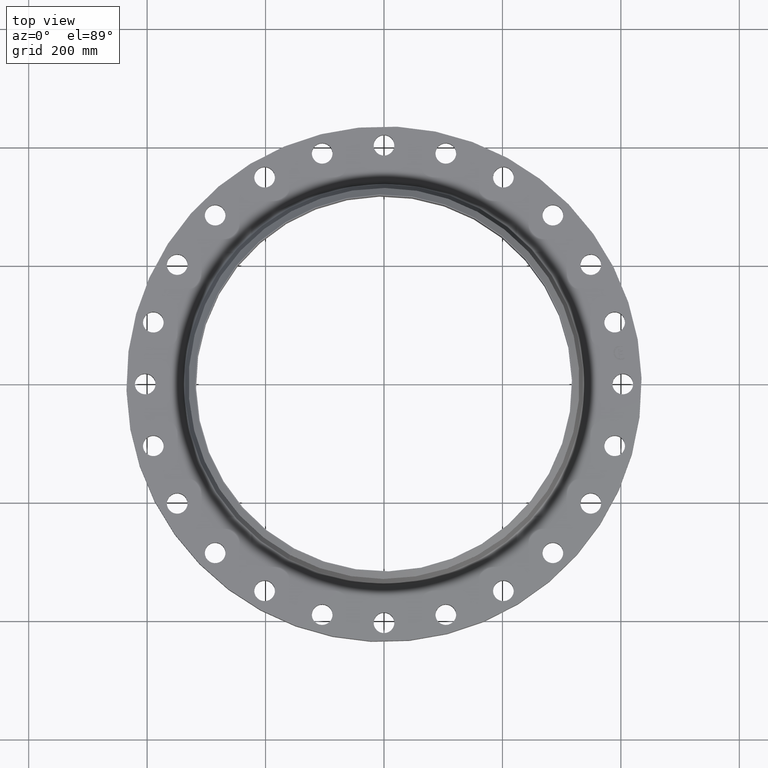
[diagram: clean part render]
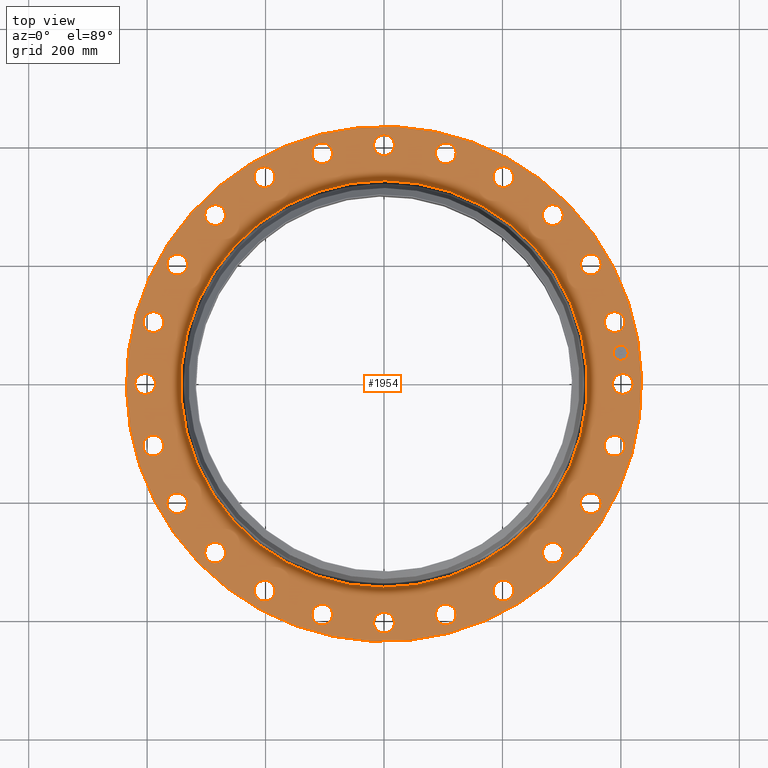
[diagram: same view with one face highlighted and labeled with its STEP entity id]
A machine part, top view. The second image highlights one B-rep face of the part: STEP entity #1954.
In plain terms, the highlighted planar face has unit normal (0, 0, -1).
Its self-contained STEP definition (entity closure, byte-faithful):
#65=AXIS2_PLACEMENT_3D('Circle Axis2P3D',#63,#64,$) ;
#82=AXIS2_PLACEMENT_3D('Circle Axis2P3D',#80,#81,$) ;
#115=AXIS2_PLACEMENT_3D('Circle Axis2P3D',#113,#114,$) ;
#139=AXIS2_PLACEMENT_3D('Circle Axis2P3D',#137,#138,$) ;
#156=AXIS2_PLACEMENT_3D('Circle Axis2P3D',#154,#155,$) ;
#191=AXIS2_PLACEMENT_3D('Circle Axis2P3D',#189,#190,$) ;
#859=AXIS2_PLACEMENT_3D('Circle Axis2P3D',#857,#858,$) ;
#871=AXIS2_PLACEMENT_3D('Circle Axis2P3D',#869,#870,$) ;
#902=AXIS2_PLACEMENT_3D('Circle Axis2P3D',#900,#901,$) ;
#914=AXIS2_PLACEMENT_3D('Circle Axis2P3D',#912,#913,$) ;
#945=AXIS2_PLACEMENT_3D('Circle Axis2P3D',#943,#944,$) ;
#957=AXIS2_PLACEMENT_3D('Circle Axis2P3D',#955,#956,$) ;
#988=AXIS2_PLACEMENT_3D('Circle Axis2P3D',#986,#987,$) ;
#1000=AXIS2_PLACEMENT_3D('Circle Axis2P3D',#998,#999,$) ;
#1031=AXIS2_PLACEMENT_3D('Circle Axis2P3D',#1029,#1030,$) ;
#1043=AXIS2_PLACEMENT_3D('Circle Axis2P3D',#1041,#1042,$) ;
#1074=AXIS2_PLACEMENT_3D('Circle Axis2P3D',#1072,#1073,$) ;
#1086=AXIS2_PLACEMENT_3D('Circle Axis2P3D',#1084,#1085,$) ;
#1117=AXIS2_PLACEMENT_3D('Circle Axis2P3D',#1115,#1116,$) ;
#1129=AXIS2_PLACEMENT_3D('Circle Axis2P3D',#1127,#1128,$) ;
#1160=AXIS2_PLACEMENT_3D('Circle Axis2P3D',#1158,#1159,$) ;
#1172=AXIS2_PLACEMENT_3D('Circle Axis2P3D',#1170,#1171,$) ;
#1203=AXIS2_PLACEMENT_3D('Circle Axis2P3D',#1201,#1202,$) ;
#1215=AXIS2_PLACEMENT_3D('Circle Axis2P3D',#1213,#1214,$) ;
#1246=AXIS2_PLACEMENT_3D('Circle Axis2P3D',#1244,#1245,$) ;
#1258=AXIS2_PLACEMENT_3D('Circle Axis2P3D',#1256,#1257,$) ;
#1289=AXIS2_PLACEMENT_3D('Circle Axis2P3D',#1287,#1288,$) ;
#1301=AXIS2_PLACEMENT_3D('Circle Axis2P3D',#1299,#1300,$) ;
#1332=AXIS2_PLACEMENT_3D('Circle Axis2P3D',#1330,#1331,$) ;
#1344=AXIS2_PLACEMENT_3D('Circle Axis2P3D',#1342,#1343,$) ;
#1375=AXIS2_PLACEMENT_3D('Circle Axis2P3D',#1373,#1374,$) ;
#1387=AXIS2_PLACEMENT_3D('Circle Axis2P3D',#1385,#1386,$) ;
#1418=AXIS2_PLACEMENT_3D('Circle Axis2P3D',#1416,#1417,$) ;
#1430=AXIS2_PLACEMENT_3D('Circle Axis2P3D',#1428,#1429,$) ;
#1461=AXIS2_PLACEMENT_3D('Circle Axis2P3D',#1459,#1460,$) ;
#1473=AXIS2_PLACEMENT_3D('Circle Axis2P3D',#1471,#1472,$) ;
#1504=AXIS2_PLACEMENT_3D('Circle Axis2P3D',#1502,#1503,$) ;
#1516=AXIS2_PLACEMENT_3D('Circle Axis2P3D',#1514,#1515,$) ;
#1547=AXIS2_PLACEMENT_3D('Circle Axis2P3D',#1545,#1546,$) ;
#1559=AXIS2_PLACEMENT_3D('Circle Axis2P3D',#1557,#1558,$) ;
#1590=AXIS2_PLACEMENT_3D('Circle Axis2P3D',#1588,#1589,$) ;
#1602=AXIS2_PLACEMENT_3D('Circle Axis2P3D',#1600,#1601,$) ;
#1633=AXIS2_PLACEMENT_3D('Circle Axis2P3D',#1631,#1632,$) ;
#1645=AXIS2_PLACEMENT_3D('Circle Axis2P3D',#1643,#1644,$) ;
#1676=AXIS2_PLACEMENT_3D('Circle Axis2P3D',#1674,#1675,$) ;
#1688=AXIS2_PLACEMENT_3D('Circle Axis2P3D',#1686,#1687,$) ;
#1719=AXIS2_PLACEMENT_3D('Circle Axis2P3D',#1717,#1718,$) ;
#1731=AXIS2_PLACEMENT_3D('Circle Axis2P3D',#1729,#1730,$) ;
#1762=AXIS2_PLACEMENT_3D('Circle Axis2P3D',#1760,#1761,$) ;
#1774=AXIS2_PLACEMENT_3D('Circle Axis2P3D',#1772,#1773,$) ;
#1805=AXIS2_PLACEMENT_3D('Circle Axis2P3D',#1803,#1804,$) ;
#1817=AXIS2_PLACEMENT_3D('Circle Axis2P3D',#1815,#1816,$) ;
#1830=AXIS2_PLACEMENT_3D('Plane Axis2P3D',#1827,#1828,#1829) ;
#1938=AXIS2_PLACEMENT_3D('Circle Axis2P3D',#1936,#1937,$) ;
#1947=AXIS2_PLACEMENT_3D('Circle Axis2P3D',#1945,#1946,$) ;
#46=CARTESIAN_POINT('Vertex',(15.2694680324,0.330803621638,2.63000000001)) ;
#60=CARTESIAN_POINT('Vertex',(16.4805319678,-0.330803621638,2.63000000001)) ;
#63=CARTESIAN_POINT('Axis2P3D Location',(15.8750000001,0.,2.63000000001)) ;
#80=CARTESIAN_POINT('Axis2P3D Location',(15.8750000001,0.,2.63000000001)) ;
#110=CARTESIAN_POINT('Vertex',(-8.21016234863,-15.0286013724,2.63000000001)) ;
#113=CARTESIAN_POINT('Axis2P3D Location',(0.,0.,2.63000000001)) ;
#117=CARTESIAN_POINT('Vertex',(8.21016234863,15.0286013724,2.63000000001)) ;
#137=CARTESIAN_POINT('Axis2P3D Location',(0.,0.,2.63000000001)) ;
#154=CARTESIAN_POINT('Axis2P3D Location',(0.,0.,2.63000000001)) ;
#158=CARTESIAN_POINT('Vertex',(6.47861463462,11.8590245424,2.63000000001)) ;
#160=CARTESIAN_POINT('Vertex',(-6.47861463462,-11.8590245424,2.63000000001)) ;
#189=CARTESIAN_POINT('Axis2P3D Location',(0.,0.,2.63000000001)) ;
#847=CARTESIAN_POINT('Vertex',(-14.8347918036,3.63249737379,2.63000000001)) ;
#854=CARTESIAN_POINT('Vertex',(-15.8333531812,4.58500730825,2.63000000001)) ;
#857=CARTESIAN_POINT('Axis2P3D Location',(-15.3340724924,4.10875234102,2.63000000001)) ;
#869=CARTESIAN_POINT('Axis2P3D Location',(-15.3340724924,4.10875234102,2.63000000001)) ;
#890=CARTESIAN_POINT('Vertex',(13.3891490291,-7.34824967618,2.63000000001)) ;
#897=CARTESIAN_POINT('Vertex',(14.1071575412,-8.52675032389,2.63000000001)) ;
#900=CARTESIAN_POINT('Axis2P3D Location',(13.7481532851,-7.93750000003,2.63000000001)) ;
#912=CARTESIAN_POINT('Axis2P3D Location',(13.7481532851,-7.93750000003,2.63000000001)) ;
#933=CARTESIAN_POINT('Vertex',(-13.3891490291,7.34824967618,2.63000000001)) ;
#940=CARTESIAN_POINT('Vertex',(-14.1071575412,8.52675032389,2.63000000001)) ;
#943=CARTESIAN_POINT('Axis2P3D Location',(-13.7481532851,7.93750000003,2.63000000001)) ;
#955=CARTESIAN_POINT('Axis2P3D Location',(-13.7481532851,7.93750000003,2.63000000001)) ;
#976=CARTESIAN_POINT('Vertex',(11.0310578749,-10.5632309067,2.63000000001)) ;
#983=CARTESIAN_POINT('Vertex',(11.4195824279,-11.8874093961,2.63000000001)) ;
#986=CARTESIAN_POINT('Axis2P3D Location',(11.2253201514,-11.2253201514,2.63000000001)) ;
#998=CARTESIAN_POINT('Axis2P3D Location',(11.2253201514,-11.2253201514,2.63000000001)) ;
#1019=CARTESIAN_POINT('Vertex',(-11.0310578749,10.5632309067,2.63000000001)) ;
#1026=CARTESIAN_POINT('Vertex',(-11.4195824279,11.8874093961,2.63000000001)) ;
#1029=CARTESIAN_POINT('Axis2P3D Location',(-11.2253201514,11.2253201514,2.63000000001)) ;
#1041=CARTESIAN_POINT('Axis2P3D Location',(-11.2253201514,11.2253201514,2.63000000001)) ;
#1062=CARTESIAN_POINT('Vertex',(7.92121835618,-13.0583454075,2.63000000001)) ;
#1069=CARTESIAN_POINT('Vertex',(7.95378164388,-14.4379611628,2.63000000001)) ;
#1072=CARTESIAN_POINT('Axis2P3D Location',(7.93750000003,-13.7481532851,2.63000000001)) ;
#1084=CARTESIAN_POINT('Axis2P3D Location',(7.93750000003,-13.7481532851,2.63000000001)) ;
#1105=CARTESIAN_POINT('Vertex',(-7.92121835618,13.0583454075,2.63000000001)) ;
#1112=CARTESIAN_POINT('Vertex',(-7.95378164388,14.4379611628,2.63000000001)) ;
#1115=CARTESIAN_POINT('Axis2P3D Location',(-7.93750000003,13.7481532851,2.63000000001)) ;
#1127=CARTESIAN_POINT('Axis2P3D Location',(-7.93750000003,13.7481532851,2.63000000001)) ;
#1148=CARTESIAN_POINT('Vertex',(4.27156089693,-14.6635552487,2.63000000001)) ;
#1155=CARTESIAN_POINT('Vertex',(3.94594378511,-16.0045897361,2.63000000001)) ;
#1158=CARTESIAN_POINT('Axis2P3D Location',(4.10875234102,-15.3340724924,2.63000000001)) ;
#1170=CARTESIAN_POINT('Axis2P3D Location',(4.10875234102,-15.3340724924,2.63000000001)) ;
#1191=CARTESIAN_POINT('Vertex',(-4.27156089693,14.6635552487,2.63000000001)) ;
#1198=CARTESIAN_POINT('Vertex',(-3.94594378511,16.0045897361,2.63000000001)) ;
#1201=CARTESIAN_POINT('Axis2P3D Location',(-4.10875234102,15.3340724924,2.63000000001)) ;
#1213=CARTESIAN_POINT('Axis2P3D Location',(-4.10875234102,15.3340724924,2.63000000001)) ;
#1234=CARTESIAN_POINT('Vertex',(0.330803621638,-15.2694680324,2.63000000001)) ;
#1241=CARTESIAN_POINT('Vertex',(-0.330803621638,-16.4805319678,2.63000000001)) ;
#1244=CARTESIAN_POINT('Axis2P3D Location',(-1.26586647958E-015,-15.8750000001,2.63000000001)) ;
#1256=CARTESIAN_POINT('Axis2P3D Location',(-1.26586647958E-015,-15.8750000001,2.63000000001)) ;
#1277=CARTESIAN_POINT('Vertex',(-0.330803621638,15.2694680324,2.63000000001)) ;
#1284=CARTESIAN_POINT('Vertex',(0.330803621638,16.4805319678,2.63000000001)) ;
#1287=CARTESIAN_POINT('Axis2P3D Location',(-6.78260314072E-016,15.8750000001,2.63000000001)) ;
#1299=CARTESIAN_POINT('Axis2P3D Location',(-6.78260314072E-016,15.8750000001,2.63000000001)) ;
#1320=CARTESIAN_POINT('Vertex',(-3.63249737379,-14.8347918036,2.63000000001)) ;
#1327=CARTESIAN_POINT('Vertex',(-4.58500730825,-15.8333531812,2.63000000001)) ;
#1330=CARTESIAN_POINT('Axis2P3D Location',(-4.10875234102,-15.3340724924,2.63000000001)) ;
#1342=CARTESIAN_POINT('Axis2P3D Location',(-4.10875234102,-15.3340724924,2.63000000001)) ;
#1363=CARTESIAN_POINT('Vertex',(3.63249737379,14.8347918036,2.63000000001)) ;
#1370=CARTESIAN_POINT('Vertex',(4.58500730825,15.8333531812,2.63000000001)) ;
#1373=CARTESIAN_POINT('Axis2P3D Location',(4.10875234102,15.3340724924,2.63000000001)) ;
#1385=CARTESIAN_POINT('Axis2P3D Location',(4.10875234102,15.3340724924,2.63000000001)) ;
#1406=CARTESIAN_POINT('Vertex',(-7.34824967618,-13.3891490291,2.63000000001)) ;
#1413=CARTESIAN_POINT('Vertex',(-8.52675032389,-14.1071575412,2.63000000001)) ;
#1416=CARTESIAN_POINT('Axis2P3D Location',(-7.93750000003,-13.7481532851,2.63000000001)) ;
#1428=CARTESIAN_POINT('Axis2P3D Location',(-7.93750000003,-13.7481532851,2.63000000001)) ;
#1449=CARTESIAN_POINT('Vertex',(7.34824967618,13.3891490291,2.63000000001)) ;
#1456=CARTESIAN_POINT('Vertex',(8.52675032389,14.1071575412,2.63000000001)) ;
#1459=CARTESIAN_POINT('Axis2P3D Location',(7.93750000003,13.7481532851,2.63000000001)) ;
#1471=CARTESIAN_POINT('Axis2P3D Location',(7.93750000003,13.7481532851,2.63000000001)) ;
#1492=CARTESIAN_POINT('Vertex',(-10.5632309067,-11.0310578749,2.63000000001)) ;
#1499=CARTESIAN_POINT('Vertex',(-11.8874093961,-11.4195824279,2.63000000001)) ;
#1502=CARTESIAN_POINT('Axis2P3D Location',(-11.2253201514,-11.2253201514,2.63000000001)) ;
#1514=CARTESIAN_POINT('Axis2P3D Location',(-11.2253201514,-11.2253201514,2.63000000001)) ;
#1535=CARTESIAN_POINT('Vertex',(10.5632309067,11.0310578749,2.63000000001)) ;
#1542=CARTESIAN_POINT('Vertex',(11.8874093961,11.4195824279,2.63000000001)) ;
#1545=CARTESIAN_POINT('Axis2P3D Location',(11.2253201514,11.2253201514,2.63000000001)) ;
#1557=CARTESIAN_POINT('Axis2P3D Location',(11.2253201514,11.2253201514,2.63000000001)) ;
#1578=CARTESIAN_POINT('Vertex',(-13.0583454075,-7.92121835618,2.63000000001)) ;
#1585=CARTESIAN_POINT('Vertex',(-14.4379611628,-7.95378164388,2.63000000001)) ;
#1588=CARTESIAN_POINT('Axis2P3D Location',(-13.7481532851,-7.93750000003,2.63000000001)) ;
#1600=CARTESIAN_POINT('Axis2P3D Location',(-13.7481532851,-7.93750000003,2.63000000001)) ;
#1621=CARTESIAN_POINT('Vertex',(13.0583454075,7.92121835618,2.63000000001)) ;
#1628=CARTESIAN_POINT('Vertex',(14.4379611628,7.95378164388,2.63000000001)) ;
#1631=CARTESIAN_POINT('Axis2P3D Location',(13.7481532851,7.93750000003,2.63000000001)) ;
#1643=CARTESIAN_POINT('Axis2P3D Location',(13.7481532851,7.93750000003,2.63000000001)) ;
#1664=CARTESIAN_POINT('Vertex',(-14.6635552487,-4.27156089693,2.63000000001)) ;
#1671=CARTESIAN_POINT('Vertex',(-16.0045897361,-3.94594378511,2.63000000001)) ;
#1674=CARTESIAN_POINT('Axis2P3D Location',(-15.3340724924,-4.10875234102,2.63000000001)) ;
#1686=CARTESIAN_POINT('Axis2P3D Location',(-15.3340724924,-4.10875234102,2.63000000001)) ;
#1707=CARTESIAN_POINT('Vertex',(14.6635552487,4.27156089693,2.63000000001)) ;
#1714=CARTESIAN_POINT('Vertex',(16.0045897361,3.94594378511,2.63000000001)) ;
#1717=CARTESIAN_POINT('Axis2P3D Location',(15.3340724924,4.10875234102,2.63000000001)) ;
#1729=CARTESIAN_POINT('Axis2P3D Location',(15.3340724924,4.10875234102,2.63000000001)) ;
#1750=CARTESIAN_POINT('Vertex',(-15.2694680324,-0.330803621638,2.63000000001)) ;
#1757=CARTESIAN_POINT('Vertex',(-16.4805319678,0.330803621638,2.63000000001)) ;
#1760=CARTESIAN_POINT('Axis2P3D Location',(-15.8750000001,-1.94412679365E-015,2.63000000001)) ;
#1772=CARTESIAN_POINT('Axis2P3D Location',(-15.8750000001,-1.94412679365E-015,2.63000000001)) ;
#1793=CARTESIAN_POINT('Vertex',(14.8347918036,-3.63249737379,2.63000000001)) ;
#1800=CARTESIAN_POINT('Vertex',(15.8333531812,-4.58500730825,2.63000000001)) ;
#1803=CARTESIAN_POINT('Axis2P3D Location',(15.3340724924,-4.10875234102,2.63000000001)) ;
#1815=CARTESIAN_POINT('Axis2P3D Location',(15.3340724924,-4.10875234102,2.63000000001)) ;
#1827=CARTESIAN_POINT('Axis2P3D Location',(0.,17.1250000001,2.63000000001)) ;
#1936=CARTESIAN_POINT('Axis2P3D Location',(15.7391871744,2.0721033015,2.63000000001)) ;
#1940=CARTESIAN_POINT('Vertex',(15.6739242278,2.56782459599,2.63000000001)) ;
#1942=CARTESIAN_POINT('Vertex',(15.8044501209,1.57638200701,2.63000000001)) ;
#1945=CARTESIAN_POINT('Axis2P3D Location',(15.7391871744,2.0721033015,2.63000000001)) ;
#64=DIRECTION('Axis2P3D Direction',(0.,-0.,-0.0393700787402)) ;
#81=DIRECTION('Axis2P3D Direction',(0.,-0.,-0.0393700787402)) ;
#114=DIRECTION('Axis2P3D Direction',(0.,0.,-0.0393700787402)) ;
#138=DIRECTION('Axis2P3D Direction',(0.,0.,-0.0393700787402)) ;
#155=DIRECTION('Axis2P3D Direction',(0.,0.,-0.0393700787402)) ;
#190=DIRECTION('Axis2P3D Direction',(0.,0.,-0.0393700787402)) ;
#858=DIRECTION('Axis2P3D Direction',(0.,0.,-0.0393700787402)) ;
#870=DIRECTION('Axis2P3D Direction',(0.,0.,-0.0393700787402)) ;
#901=DIRECTION('Axis2P3D Direction',(0.,-0.,-0.0393700787402)) ;
#913=DIRECTION('Axis2P3D Direction',(0.,-0.,-0.0393700787402)) ;
#944=DIRECTION('Axis2P3D Direction',(0.,0.,-0.0393700787402)) ;
#956=DIRECTION('Axis2P3D Direction',(0.,0.,-0.0393700787402)) ;
#987=DIRECTION('Axis2P3D Direction',(0.,-0.,-0.0393700787402)) ;
#999=DIRECTION('Axis2P3D Direction',(0.,-0.,-0.0393700787402)) ;
#1030=DIRECTION('Axis2P3D Direction',(0.,0.,-0.0393700787402)) ;
#1042=DIRECTION('Axis2P3D Direction',(0.,0.,-0.0393700787402)) ;
#1073=DIRECTION('Axis2P3D Direction',(0.,-0.,-0.0393700787402)) ;
#1085=DIRECTION('Axis2P3D Direction',(0.,-0.,-0.0393700787402)) ;
#1116=DIRECTION('Axis2P3D Direction',(0.,0.,-0.0393700787402)) ;
#1128=DIRECTION('Axis2P3D Direction',(0.,0.,-0.0393700787402)) ;
#1159=DIRECTION('Axis2P3D Direction',(0.,-0.,-0.0393700787402)) ;
#1171=DIRECTION('Axis2P3D Direction',(0.,-0.,-0.0393700787402)) ;
#1202=DIRECTION('Axis2P3D Direction',(0.,0.,-0.0393700787402)) ;
#1214=DIRECTION('Axis2P3D Direction',(0.,0.,-0.0393700787402)) ;
#1245=DIRECTION('Axis2P3D Direction',(0.,-0.,-0.0393700787402)) ;
#1257=DIRECTION('Axis2P3D Direction',(0.,-0.,-0.0393700787402)) ;
#1288=DIRECTION('Axis2P3D Direction',(0.,0.,-0.0393700787402)) ;
#1300=DIRECTION('Axis2P3D Direction',(0.,0.,-0.0393700787402)) ;
#1331=DIRECTION('Axis2P3D Direction',(-0.,0.,-0.0393700787402)) ;
#1343=DIRECTION('Axis2P3D Direction',(-0.,0.,-0.0393700787402)) ;
#1374=DIRECTION('Axis2P3D Direction',(0.,0.,-0.0393700787402)) ;
#1386=DIRECTION('Axis2P3D Direction',(0.,0.,-0.0393700787402)) ;
#1417=DIRECTION('Axis2P3D Direction',(-0.,0.,-0.0393700787402)) ;
#1429=DIRECTION('Axis2P3D Direction',(-0.,0.,-0.0393700787402)) ;
#1460=DIRECTION('Axis2P3D Direction',(0.,0.,-0.0393700787402)) ;
#1472=DIRECTION('Axis2P3D Direction',(0.,0.,-0.0393700787402)) ;
#1503=DIRECTION('Axis2P3D Direction',(-0.,0.,-0.0393700787402)) ;
#1515=DIRECTION('Axis2P3D Direction',(-0.,0.,-0.0393700787402)) ;
#1546=DIRECTION('Axis2P3D Direction',(0.,0.,-0.0393700787402)) ;
#1558=DIRECTION('Axis2P3D Direction',(0.,0.,-0.0393700787402)) ;
#1589=DIRECTION('Axis2P3D Direction',(-0.,0.,-0.0393700787402)) ;
#1601=DIRECTION('Axis2P3D Direction',(-0.,0.,-0.0393700787402)) ;
#1632=DIRECTION('Axis2P3D Direction',(0.,0.,-0.0393700787402)) ;
#1644=DIRECTION('Axis2P3D Direction',(0.,0.,-0.0393700787402)) ;
#1675=DIRECTION('Axis2P3D Direction',(-0.,0.,-0.0393700787402)) ;
#1687=DIRECTION('Axis2P3D Direction',(-0.,0.,-0.0393700787402)) ;
#1718=DIRECTION('Axis2P3D Direction',(0.,0.,-0.0393700787402)) ;
#1730=DIRECTION('Axis2P3D Direction',(0.,0.,-0.0393700787402)) ;
#1761=DIRECTION('Axis2P3D Direction',(-0.,0.,-0.0393700787402)) ;
#1773=DIRECTION('Axis2P3D Direction',(-0.,0.,-0.0393700787402)) ;
#1804=DIRECTION('Axis2P3D Direction',(0.,-0.,-0.0393700787402)) ;
#1816=DIRECTION('Axis2P3D Direction',(0.,-0.,-0.0393700787402)) ;
#1828=DIRECTION('Axis2P3D Direction',(0.,0.,-0.0393700787402)) ;
#1829=DIRECTION('Axis2P3D XDirection',(0.0393700787402,0.,0.)) ;
#1937=DIRECTION('Axis2P3D Direction',(0.,0.,-0.0393700787402)) ;
#1946=DIRECTION('Axis2P3D Direction',(0.,0.,-0.0393700787402)) ;
#1833=ORIENTED_EDGE('',*,*,#141,.F.) ;
#1834=ORIENTED_EDGE('',*,*,#119,.F.) ;
#1837=ORIENTED_EDGE('',*,*,#67,.T.) ;
#1838=ORIENTED_EDGE('',*,*,#84,.T.) ;
#1841=ORIENTED_EDGE('',*,*,#193,.T.) ;
#1842=ORIENTED_EDGE('',*,*,#162,.T.) ;
#1845=ORIENTED_EDGE('',*,*,#1819,.T.) ;
#1846=ORIENTED_EDGE('',*,*,#1807,.T.) ;
#1849=ORIENTED_EDGE('',*,*,#916,.T.) ;
#1850=ORIENTED_EDGE('',*,*,#904,.T.) ;
#1853=ORIENTED_EDGE('',*,*,#1002,.T.) ;
#1854=ORIENTED_EDGE('',*,*,#990,.T.) ;
#1857=ORIENTED_EDGE('',*,*,#1088,.T.) ;
#1858=ORIENTED_EDGE('',*,*,#1076,.T.) ;
#1861=ORIENTED_EDGE('',*,*,#1174,.T.) ;
#1862=ORIENTED_EDGE('',*,*,#1162,.T.) ;
#1865=ORIENTED_EDGE('',*,*,#1260,.T.) ;
#1866=ORIENTED_EDGE('',*,*,#1248,.T.) ;
#1869=ORIENTED_EDGE('',*,*,#1346,.T.) ;
#1870=ORIENTED_EDGE('',*,*,#1334,.T.) ;
#1873=ORIENTED_EDGE('',*,*,#1432,.T.) ;
#1874=ORIENTED_EDGE('',*,*,#1420,.T.) ;
#1877=ORIENTED_EDGE('',*,*,#1518,.T.) ;
#1878=ORIENTED_EDGE('',*,*,#1506,.T.) ;
#1881=ORIENTED_EDGE('',*,*,#1604,.T.) ;
#1882=ORIENTED_EDGE('',*,*,#1592,.T.) ;
#1885=ORIENTED_EDGE('',*,*,#1690,.T.) ;
#1886=ORIENTED_EDGE('',*,*,#1678,.T.) ;
#1889=ORIENTED_EDGE('',*,*,#1776,.T.) ;
#1890=ORIENTED_EDGE('',*,*,#1764,.T.) ;
#1893=ORIENTED_EDGE('',*,*,#873,.T.) ;
#1894=ORIENTED_EDGE('',*,*,#861,.T.) ;
#1897=ORIENTED_EDGE('',*,*,#959,.T.) ;
#1898=ORIENTED_EDGE('',*,*,#947,.T.) ;
#1901=ORIENTED_EDGE('',*,*,#1045,.T.) ;
#1902=ORIENTED_EDGE('',*,*,#1033,.T.) ;
#1905=ORIENTED_EDGE('',*,*,#1131,.T.) ;
#1906=ORIENTED_EDGE('',*,*,#1119,.T.) ;
#1909=ORIENTED_EDGE('',*,*,#1217,.T.) ;
#1910=ORIENTED_EDGE('',*,*,#1205,.T.) ;
#1913=ORIENTED_EDGE('',*,*,#1303,.T.) ;
#1914=ORIENTED_EDGE('',*,*,#1291,.T.) ;
#1917=ORIENTED_EDGE('',*,*,#1389,.T.) ;
#1918=ORIENTED_EDGE('',*,*,#1377,.T.) ;
#1921=ORIENTED_EDGE('',*,*,#1475,.T.) ;
#1922=ORIENTED_EDGE('',*,*,#1463,.T.) ;
#1925=ORIENTED_EDGE('',*,*,#1561,.T.) ;
#1926=ORIENTED_EDGE('',*,*,#1549,.T.) ;
#1929=ORIENTED_EDGE('',*,*,#1647,.T.) ;
#1930=ORIENTED_EDGE('',*,*,#1635,.T.) ;
#1933=ORIENTED_EDGE('',*,*,#1733,.T.) ;
#1934=ORIENTED_EDGE('',*,*,#1721,.T.) ;
#1951=ORIENTED_EDGE('',*,*,#1944,.T.) ;
#1952=ORIENTED_EDGE('',*,*,#1949,.T.) ;
#1839=FACE_BOUND('',#1836,.T.) ;
#1843=FACE_BOUND('',#1840,.T.) ;
#1847=FACE_BOUND('',#1844,.T.) ;
#1851=FACE_BOUND('',#1848,.T.) ;
#1855=FACE_BOUND('',#1852,.T.) ;
#1859=FACE_BOUND('',#1856,.T.) ;
#1863=FACE_BOUND('',#1860,.T.) ;
#1867=FACE_BOUND('',#1864,.T.) ;
#1871=FACE_BOUND('',#1868,.T.) ;
#1875=FACE_BOUND('',#1872,.T.) ;
#1879=FACE_BOUND('',#1876,.T.) ;
#1883=FACE_BOUND('',#1880,.T.) ;
#1887=FACE_BOUND('',#1884,.T.) ;
#1891=FACE_BOUND('',#1888,.T.) ;
#1895=FACE_BOUND('',#1892,.T.) ;
#1899=FACE_BOUND('',#1896,.T.) ;
#1903=FACE_BOUND('',#1900,.T.) ;
#1907=FACE_BOUND('',#1904,.T.) ;
#1911=FACE_BOUND('',#1908,.T.) ;
#1915=FACE_BOUND('',#1912,.T.) ;
#1919=FACE_BOUND('',#1916,.T.) ;
#1923=FACE_BOUND('',#1920,.T.) ;
#1927=FACE_BOUND('',#1924,.T.) ;
#1931=FACE_BOUND('',#1928,.T.) ;
#1935=FACE_BOUND('',#1932,.T.) ;
#1953=FACE_BOUND('',#1950,.T.) ;
#1954=ADVANCED_FACE('PartBody',(#1835,#1839,#1843,#1847,#1851,#1855,#1859,#1863,#1867,#1871,#1875,#1879,#1883,#1887,#1891,#1895,#1899,#1903,#1907,#1911,#1915,#1919,#1923,#1927,#1931,#1935,#1953),#1831,.F.) ;
#66=CIRCLE('generated circle',#65,0.690000000003) ;
#83=CIRCLE('generated circle',#82,0.690000000003) ;
#116=CIRCLE('generated circle',#115,17.1250000001) ;
#140=CIRCLE('generated circle',#139,17.1250000001) ;
#157=CIRCLE('generated circle',#156,13.51328645) ;
#192=CIRCLE('generated circle',#191,13.51328645) ;
#860=CIRCLE('generated circle',#859,0.690000000003) ;
#872=CIRCLE('generated circle',#871,0.690000000003) ;
#903=CIRCLE('generated circle',#902,0.690000000003) ;
#915=CIRCLE('generated circle',#914,0.690000000003) ;
#946=CIRCLE('generated circle',#945,0.690000000003) ;
#958=CIRCLE('generated circle',#957,0.690000000003) ;
#989=CIRCLE('generated circle',#988,0.690000000003) ;
#1001=CIRCLE('generated circle',#1000,0.690000000003) ;
#1032=CIRCLE('generated circle',#1031,0.690000000003) ;
#1044=CIRCLE('generated circle',#1043,0.690000000003) ;
#1075=CIRCLE('generated circle',#1074,0.690000000003) ;
#1087=CIRCLE('generated circle',#1086,0.690000000003) ;
#1118=CIRCLE('generated circle',#1117,0.690000000003) ;
#1130=CIRCLE('generated circle',#1129,0.690000000003) ;
#1161=CIRCLE('generated circle',#1160,0.690000000003) ;
#1173=CIRCLE('generated circle',#1172,0.690000000003) ;
#1204=CIRCLE('generated circle',#1203,0.690000000003) ;
#1216=CIRCLE('generated circle',#1215,0.690000000003) ;
#1247=CIRCLE('generated circle',#1246,0.690000000003) ;
#1259=CIRCLE('generated circle',#1258,0.690000000003) ;
#1290=CIRCLE('generated circle',#1289,0.690000000003) ;
#1302=CIRCLE('generated circle',#1301,0.690000000003) ;
#1333=CIRCLE('generated circle',#1332,0.690000000003) ;
#1345=CIRCLE('generated circle',#1344,0.690000000003) ;
#1376=CIRCLE('generated circle',#1375,0.690000000003) ;
#1388=CIRCLE('generated circle',#1387,0.690000000003) ;
#1419=CIRCLE('generated circle',#1418,0.690000000003) ;
#1431=CIRCLE('generated circle',#1430,0.690000000003) ;
#1462=CIRCLE('generated circle',#1461,0.690000000003) ;
#1474=CIRCLE('generated circle',#1473,0.690000000003) ;
#1505=CIRCLE('generated circle',#1504,0.690000000003) ;
#1517=CIRCLE('generated circle',#1516,0.690000000003) ;
#1548=CIRCLE('generated circle',#1547,0.690000000003) ;
#1560=CIRCLE('generated circle',#1559,0.690000000003) ;
#1591=CIRCLE('generated circle',#1590,0.690000000003) ;
#1603=CIRCLE('generated circle',#1602,0.690000000003) ;
#1634=CIRCLE('generated circle',#1633,0.690000000003) ;
#1646=CIRCLE('generated circle',#1645,0.690000000003) ;
#1677=CIRCLE('generated circle',#1676,0.690000000003) ;
#1689=CIRCLE('generated circle',#1688,0.690000000003) ;
#1720=CIRCLE('generated circle',#1719,0.690000000003) ;
#1732=CIRCLE('generated circle',#1731,0.690000000003) ;
#1763=CIRCLE('generated circle',#1762,0.690000000003) ;
#1775=CIRCLE('generated circle',#1774,0.690000000003) ;
#1806=CIRCLE('generated circle',#1805,0.690000000003) ;
#1818=CIRCLE('generated circle',#1817,0.690000000003) ;
#1939=CIRCLE('generated circle',#1938,0.499998853999) ;
#1948=CIRCLE('generated circle',#1947,0.499998853999) ;
#67=EDGE_CURVE('',#47,#61,#66,.T.) ;
#84=EDGE_CURVE('',#61,#47,#83,.T.) ;
#119=EDGE_CURVE('',#111,#118,#116,.T.) ;
#141=EDGE_CURVE('',#118,#111,#140,.T.) ;
#162=EDGE_CURVE('',#159,#161,#157,.T.) ;
#193=EDGE_CURVE('',#161,#159,#192,.T.) ;
#861=EDGE_CURVE('',#848,#855,#860,.T.) ;
#873=EDGE_CURVE('',#855,#848,#872,.T.) ;
#904=EDGE_CURVE('',#891,#898,#903,.T.) ;
#916=EDGE_CURVE('',#898,#891,#915,.T.) ;
#947=EDGE_CURVE('',#934,#941,#946,.T.) ;
#959=EDGE_CURVE('',#941,#934,#958,.T.) ;
#990=EDGE_CURVE('',#977,#984,#989,.T.) ;
#1002=EDGE_CURVE('',#984,#977,#1001,.T.) ;
#1033=EDGE_CURVE('',#1020,#1027,#1032,.T.) ;
#1045=EDGE_CURVE('',#1027,#1020,#1044,.T.) ;
#1076=EDGE_CURVE('',#1063,#1070,#1075,.T.) ;
#1088=EDGE_CURVE('',#1070,#1063,#1087,.T.) ;
#1119=EDGE_CURVE('',#1106,#1113,#1118,.T.) ;
#1131=EDGE_CURVE('',#1113,#1106,#1130,.T.) ;
#1162=EDGE_CURVE('',#1149,#1156,#1161,.T.) ;
#1174=EDGE_CURVE('',#1156,#1149,#1173,.T.) ;
#1205=EDGE_CURVE('',#1192,#1199,#1204,.T.) ;
#1217=EDGE_CURVE('',#1199,#1192,#1216,.T.) ;
#1248=EDGE_CURVE('',#1235,#1242,#1247,.T.) ;
#1260=EDGE_CURVE('',#1242,#1235,#1259,.T.) ;
#1291=EDGE_CURVE('',#1278,#1285,#1290,.T.) ;
#1303=EDGE_CURVE('',#1285,#1278,#1302,.T.) ;
#1334=EDGE_CURVE('',#1321,#1328,#1333,.T.) ;
#1346=EDGE_CURVE('',#1328,#1321,#1345,.T.) ;
#1377=EDGE_CURVE('',#1364,#1371,#1376,.T.) ;
#1389=EDGE_CURVE('',#1371,#1364,#1388,.T.) ;
#1420=EDGE_CURVE('',#1407,#1414,#1419,.T.) ;
#1432=EDGE_CURVE('',#1414,#1407,#1431,.T.) ;
#1463=EDGE_CURVE('',#1450,#1457,#1462,.T.) ;
#1475=EDGE_CURVE('',#1457,#1450,#1474,.T.) ;
#1506=EDGE_CURVE('',#1493,#1500,#1505,.T.) ;
#1518=EDGE_CURVE('',#1500,#1493,#1517,.T.) ;
#1549=EDGE_CURVE('',#1536,#1543,#1548,.T.) ;
#1561=EDGE_CURVE('',#1543,#1536,#1560,.T.) ;
#1592=EDGE_CURVE('',#1579,#1586,#1591,.T.) ;
#1604=EDGE_CURVE('',#1586,#1579,#1603,.T.) ;
#1635=EDGE_CURVE('',#1622,#1629,#1634,.T.) ;
#1647=EDGE_CURVE('',#1629,#1622,#1646,.T.) ;
#1678=EDGE_CURVE('',#1665,#1672,#1677,.T.) ;
#1690=EDGE_CURVE('',#1672,#1665,#1689,.T.) ;
#1721=EDGE_CURVE('',#1708,#1715,#1720,.T.) ;
#1733=EDGE_CURVE('',#1715,#1708,#1732,.T.) ;
#1764=EDGE_CURVE('',#1751,#1758,#1763,.T.) ;
#1776=EDGE_CURVE('',#1758,#1751,#1775,.T.) ;
#1807=EDGE_CURVE('',#1794,#1801,#1806,.T.) ;
#1819=EDGE_CURVE('',#1801,#1794,#1818,.T.) ;
#1944=EDGE_CURVE('',#1941,#1943,#1939,.T.) ;
#1949=EDGE_CURVE('',#1943,#1941,#1948,.T.) ;
#1832=EDGE_LOOP('',(#1833,#1834)) ;
#1836=EDGE_LOOP('',(#1837,#1838)) ;
#1840=EDGE_LOOP('',(#1841,#1842)) ;
#1844=EDGE_LOOP('',(#1845,#1846)) ;
#1848=EDGE_LOOP('',(#1849,#1850)) ;
#1852=EDGE_LOOP('',(#1853,#1854)) ;
#1856=EDGE_LOOP('',(#1857,#1858)) ;
#1860=EDGE_LOOP('',(#1861,#1862)) ;
#1864=EDGE_LOOP('',(#1865,#1866)) ;
#1868=EDGE_LOOP('',(#1869,#1870)) ;
#1872=EDGE_LOOP('',(#1873,#1874)) ;
#1876=EDGE_LOOP('',(#1877,#1878)) ;
#1880=EDGE_LOOP('',(#1881,#1882)) ;
#1884=EDGE_LOOP('',(#1885,#1886)) ;
#1888=EDGE_LOOP('',(#1889,#1890)) ;
#1892=EDGE_LOOP('',(#1893,#1894)) ;
#1896=EDGE_LOOP('',(#1897,#1898)) ;
#1900=EDGE_LOOP('',(#1901,#1902)) ;
#1904=EDGE_LOOP('',(#1905,#1906)) ;
#1908=EDGE_LOOP('',(#1909,#1910)) ;
#1912=EDGE_LOOP('',(#1913,#1914)) ;
#1916=EDGE_LOOP('',(#1917,#1918)) ;
#1920=EDGE_LOOP('',(#1921,#1922)) ;
#1924=EDGE_LOOP('',(#1925,#1926)) ;
#1928=EDGE_LOOP('',(#1929,#1930)) ;
#1932=EDGE_LOOP('',(#1933,#1934)) ;
#1950=EDGE_LOOP('',(#1951,#1952)) ;
#1835=FACE_OUTER_BOUND('',#1832,.T.) ;
#1831=PLANE('',#1830) ;
#47=VERTEX_POINT('',#46) ;
#61=VERTEX_POINT('',#60) ;
#111=VERTEX_POINT('',#110) ;
#118=VERTEX_POINT('',#117) ;
#159=VERTEX_POINT('',#158) ;
#161=VERTEX_POINT('',#160) ;
#848=VERTEX_POINT('',#847) ;
#855=VERTEX_POINT('',#854) ;
#891=VERTEX_POINT('',#890) ;
#898=VERTEX_POINT('',#897) ;
#934=VERTEX_POINT('',#933) ;
#941=VERTEX_POINT('',#940) ;
#977=VERTEX_POINT('',#976) ;
#984=VERTEX_POINT('',#983) ;
#1020=VERTEX_POINT('',#1019) ;
#1027=VERTEX_POINT('',#1026) ;
#1063=VERTEX_POINT('',#1062) ;
#1070=VERTEX_POINT('',#1069) ;
#1106=VERTEX_POINT('',#1105) ;
#1113=VERTEX_POINT('',#1112) ;
#1149=VERTEX_POINT('',#1148) ;
#1156=VERTEX_POINT('',#1155) ;
#1192=VERTEX_POINT('',#1191) ;
#1199=VERTEX_POINT('',#1198) ;
#1235=VERTEX_POINT('',#1234) ;
#1242=VERTEX_POINT('',#1241) ;
#1278=VERTEX_POINT('',#1277) ;
#1285=VERTEX_POINT('',#1284) ;
#1321=VERTEX_POINT('',#1320) ;
#1328=VERTEX_POINT('',#1327) ;
#1364=VERTEX_POINT('',#1363) ;
#1371=VERTEX_POINT('',#1370) ;
#1407=VERTEX_POINT('',#1406) ;
#1414=VERTEX_POINT('',#1413) ;
#1450=VERTEX_POINT('',#1449) ;
#1457=VERTEX_POINT('',#1456) ;
#1493=VERTEX_POINT('',#1492) ;
#1500=VERTEX_POINT('',#1499) ;
#1536=VERTEX_POINT('',#1535) ;
#1543=VERTEX_POINT('',#1542) ;
#1579=VERTEX_POINT('',#1578) ;
#1586=VERTEX_POINT('',#1585) ;
#1622=VERTEX_POINT('',#1621) ;
#1629=VERTEX_POINT('',#1628) ;
#1665=VERTEX_POINT('',#1664) ;
#1672=VERTEX_POINT('',#1671) ;
#1708=VERTEX_POINT('',#1707) ;
#1715=VERTEX_POINT('',#1714) ;
#1751=VERTEX_POINT('',#1750) ;
#1758=VERTEX_POINT('',#1757) ;
#1794=VERTEX_POINT('',#1793) ;
#1801=VERTEX_POINT('',#1800) ;
#1941=VERTEX_POINT('',#1940) ;
#1943=VERTEX_POINT('',#1942) ;